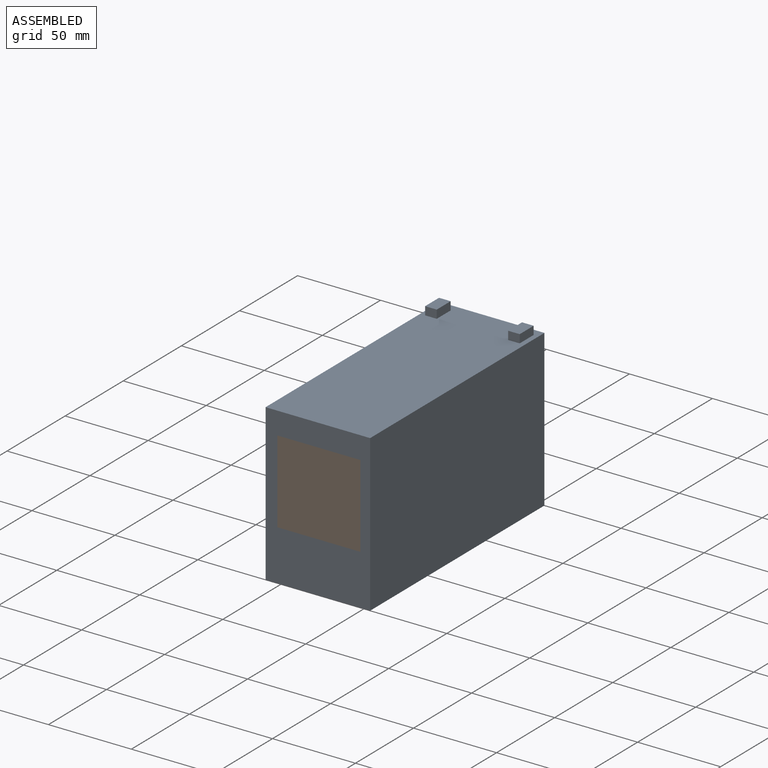
[diagram: assembled view]
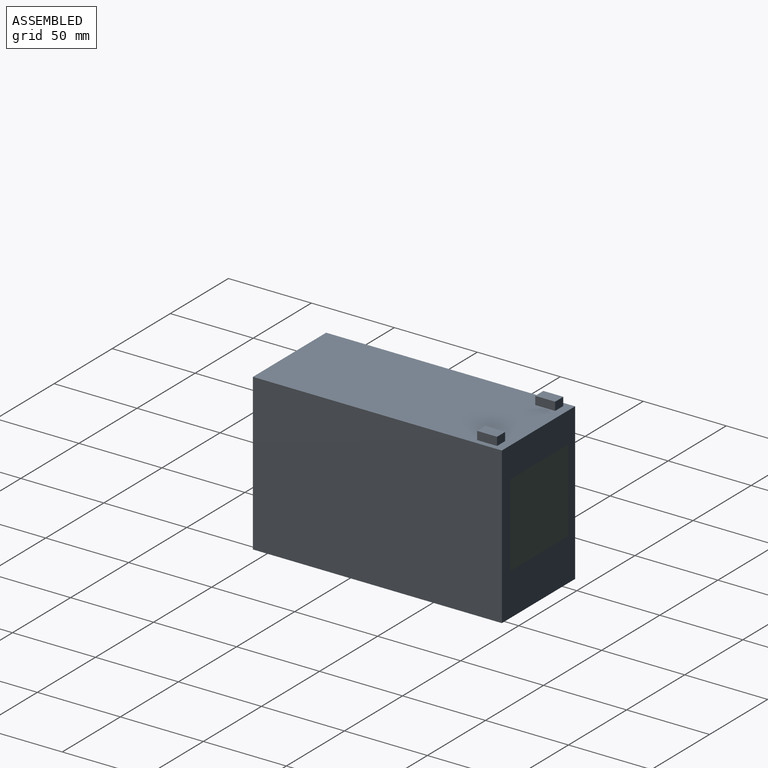
[diagram: assembled view, second angle]
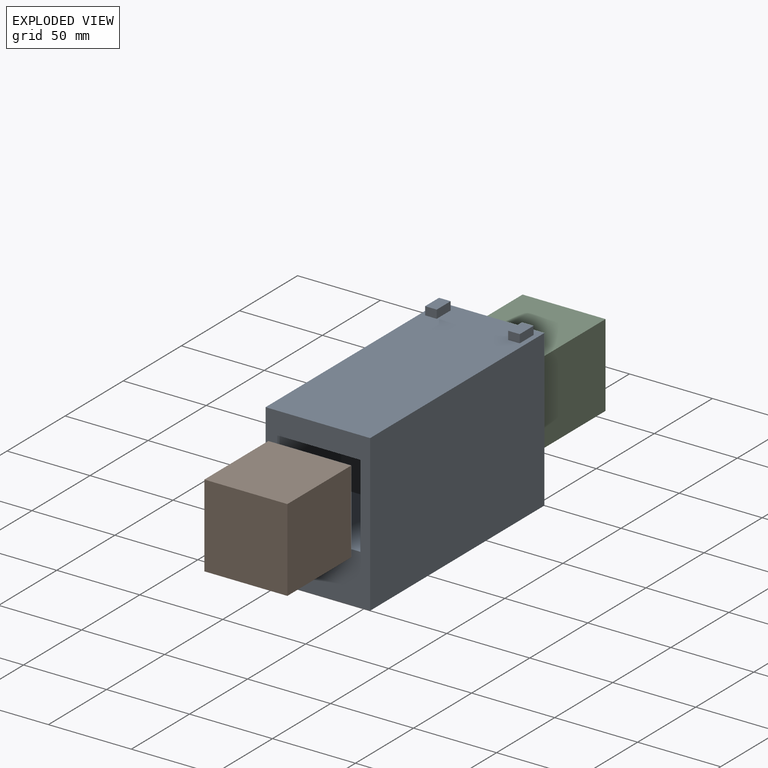
[diagram: exploded view]
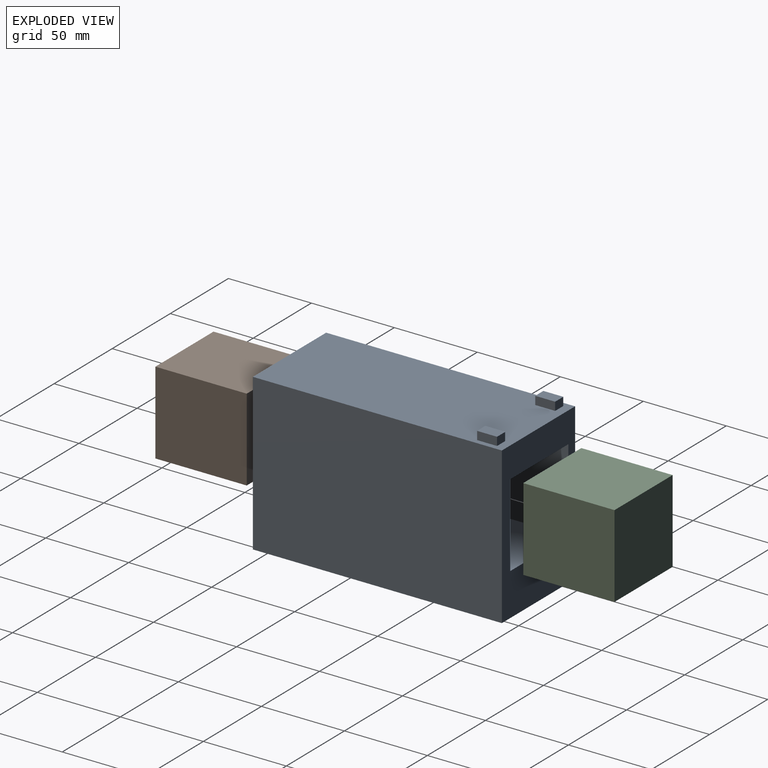
[diagram: exploded view, second angle]
ASSEMBLY  parts=3 mates=2
PART A: 26 faces, bbox 63x150x99 mm
  f0: plane 94x63mm, normal (0,1,0), area 3422mm2, adj f2,f3,f4,f5,f21,f22,f23,f24
  f1: plane 94x63mm, normal (0,-1,0), area 3422mm2, adj f2,f3,f4,f5,f16,f17,f18,f19
  f2: plane 150x63mm, normal (0,0,1), area 9282mm2, adj f0,f1,f3,f4,f6,f7,f8,f9
  f3: plane 150x94mm, normal (-1,0,0), area 14100mm2, adj f0,f1,f2,f5
  f4: plane 150x94mm, normal (1,0,0), area 14100mm2, adj f0,f1,f2,f5
  f5: plane 150x63mm, normal (0,0,-1), area 9450mm2, adj f0,f1,f3,f4
  f6: plane 7x5mm, normal (0,1,0), area 35mm2, adj f2,f7,f9,f10
  f7: plane 12x5mm, normal (-1,0,0), area 60mm2, adj f2,f6,f8,f10
  f8: plane 7x5mm, normal (0,-1,0), area 35mm2, adj f2,f7,f9,f10
  f9: plane 12x5mm, normal (1,0,0), area 60mm2, adj f2,f6,f8,f10
  f10: plane 12x7mm, normal (0,0,1), area 84mm2, adj f6,f7,f8,f9
  f11: plane 7x5mm, normal (0,1,0), area 35mm2, adj f2,f12,f14,f15
  f12: plane 12x5mm, normal (-1,0,0), area 60mm2, adj f2,f11,f13,f15
  f13: plane 7x5mm, normal (0,-1,0), area 35mm2, adj f2,f12,f14,f15
  f14: plane 12x5mm, normal (1,0,0), area 60mm2, adj f2,f11,f13,f15
  f15: plane 12x7mm, normal (0,0,1), area 84mm2, adj f11,f12,f13,f14
  f16: plane 55x50mm, normal (0,0,-1), area 2750mm2, adj f1,f17,f19,f20
  f17: plane 55x50mm, normal (1,0,0), area 2750mm2, adj f1,f16,f18,f20
  f18: plane 55x50mm, normal (0,0,1), area 2750mm2, adj f1,f17,f19,f20
  f19: plane 55x50mm, normal (-1,0,0), area 2750mm2, adj f1,f16,f18,f20
  f20: plane 50x50mm, normal (0,-1,0), area 2500mm2, adj f16,f17,f18,f19
  f21: plane 55x50mm, normal (0,0,-1), area 2750mm2, adj f0,f22,f24,f25
  f22: plane 55x50mm, normal (-1,0,0), area 2750mm2, adj f0,f21,f23,f25
  f23: plane 55x50mm, normal (0,0,1), area 2750mm2, adj f0,f22,f24,f25
  f24: plane 55x50mm, normal (1,0,0), area 2750mm2, adj f0,f21,f23,f25
  f25: plane 50x50mm, normal (0,1,0), area 2500mm2, adj f21,f22,f23,f24
PART B: 6 faces, bbox 50x55x50 mm
  f0: plane 55x50mm, normal (0,0,1), area 2750mm2, adj f1,f3,f4,f5
  f1: plane 55x50mm, normal (-1,0,0), area 2750mm2, adj f0,f2,f4,f5
  f2: plane 55x50mm, normal (0,0,-1), area 2750mm2, adj f1,f3,f4,f5
  f3: plane 55x50mm, normal (1,0,0), area 2750mm2, adj f0,f2,f4,f5
  f4: plane 50x50mm, normal (0,-1,0), area 2500mm2, adj f0,f1,f2,f3
  f5: plane 50x50mm, normal (0,1,0), area 2500mm2, adj f0,f1,f2,f3
PART C: same geometry as B
PLACE A t=(2.05,-60.67,-75.69)mm
PLACE B t=(-25,0,-25)mm
PLACE C t=(-26.33,95,-29.9)mm
MATE fastened C.f4 <-> A.f25  axis (0,-1,0) through (-24.86,40,-25.09)mm
MATE fastened B.f5 <-> A.f20  axis (0,1,0) through (-23.53,0,-20.19)mm
